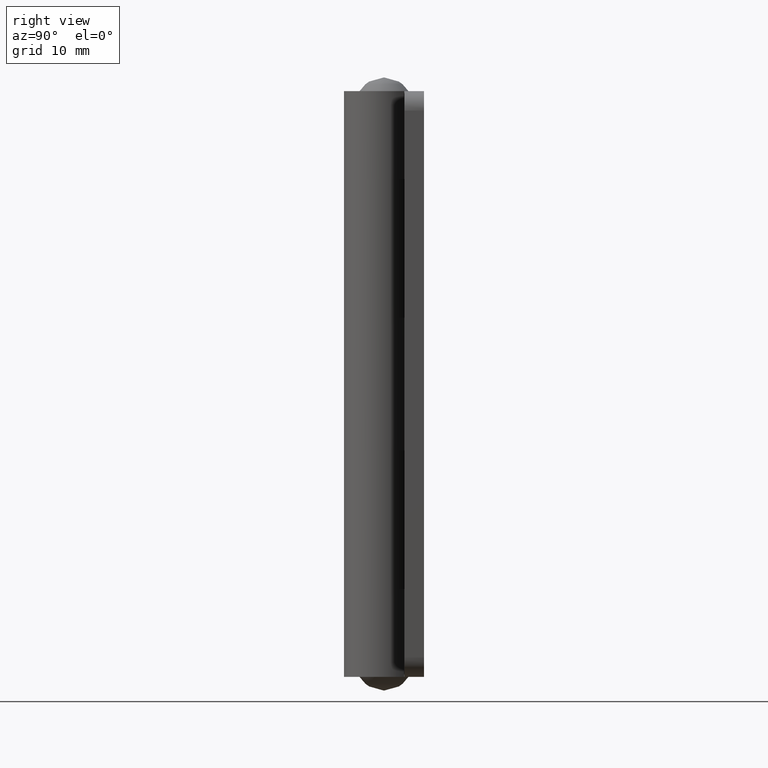
[diagram: clean part render]
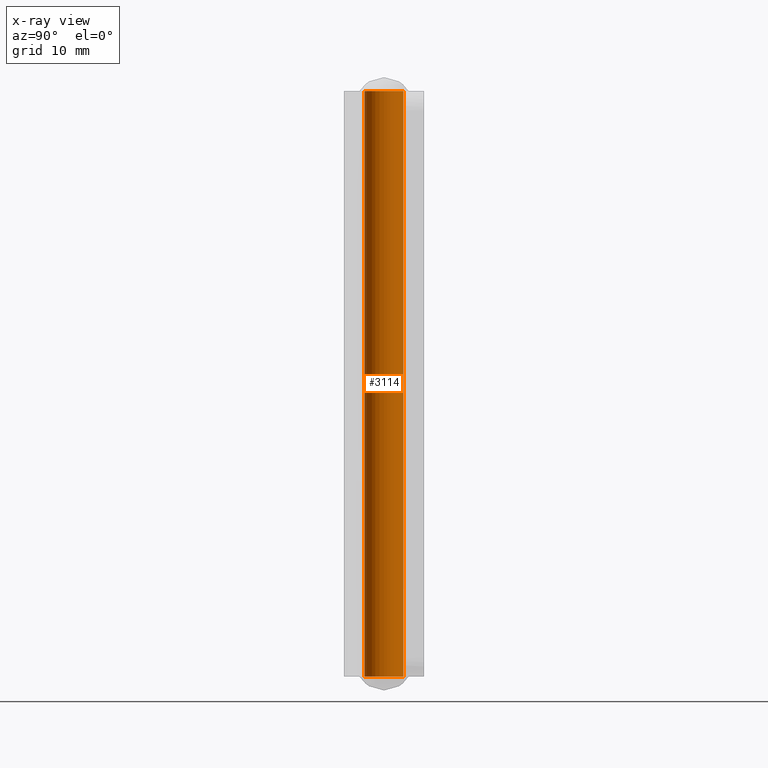
[diagram: x-ray — body ghosted, one internal face saturated and labeled with its STEP entity id]
A machine part, right view, then the same camera in x-ray: the body is ghosted and one INTERNAL B-rep face — a face not visible from any outside direction — is saturated and labeled: STEP entity #3114.
In plain terms, the highlighted face is a freeform B-spline surface patch.
Its self-contained STEP definition (entity closure, byte-faithful):
#3012=CARTESIAN_POINT('',(0.354102703970275,2.979028579091000,-2.250000000000002));
#3013=CARTESIAN_POINT('',(0.268844185913933,2.989162846345817,-2.250000000000002));
#3014=CARTESIAN_POINT('',(0.183145618604571,2.994404395265600,-2.250000000000002));
#3015=CARTESIAN_POINT('',(-2.811258776661029,3.177550013870171,-2.250000000000003));
#3016=CARTESIAN_POINT('',(-2.994404395265600,0.183145618604571,-2.250000000000002));
#3017=CARTESIAN_POINT('',(-3.177550013870171,-2.811258776661029,-2.250000000000003));
#3018=CARTESIAN_POINT('',(-0.183145618604571,-2.994404395265600,-2.250000000000002));
#3019=CARTESIAN_POINT('',(0.354102703970275,2.979028579091000,92.306250000000020));
#3020=CARTESIAN_POINT('',(0.268844185913933,2.989162846345817,92.306250000000006));
#3021=CARTESIAN_POINT('',(0.183145618604571,2.994404395265600,92.306250000000006));
#3022=CARTESIAN_POINT('',(-2.811258776661029,3.177550013870171,92.306249999999991));
#3023=CARTESIAN_POINT('',(-2.994404395265600,0.183145618604571,92.306250000000006));
#3024=CARTESIAN_POINT('',(-3.177550013870171,-2.811258776661029,92.306249999999991));
#3025=CARTESIAN_POINT('',(-0.183145618604571,-2.994404395265600,92.306250000000006));
#3033=(BOUNDED_SURFACE()B_SPLINE_SURFACE(2,1,((#3012,#3019),(#3013,#3020),(#3014,#3021),(#3015,#3022),(#3016,#3023),(#3017,#3024),(#3018,#3025)),.UNSPECIFIED.,.F.,.F.,.U.)B_SPLINE_SURFACE_WITH_KNOTS((3,2,2,3),(2,2),(0.0,0.198822509939086,5.169385258416225,10.139948006893370),(0.0,94.556250000000034),.UNSPECIFIED.)GEOMETRIC_REPRESENTATION_ITEM()RATIONAL_B_SPLINE_SURFACE(((0.977505800795127,0.977505800795127),(0.988284271247462,0.988284271247462),(1.0,1.0),(0.707106781186548,0.707106781186548),(1.0,1.0),(0.707106781186548,0.707106781186548),(1.0,1.0)))REPRESENTATION_ITEM('')SURFACE());
#3034=CARTESIAN_POINT('',(0.354102704248209,2.979028579057963,-3.180160E-015));
#3035=VERTEX_POINT('',#3034);
#3036=CARTESIAN_POINT('',(-3.0,0.0,0.0));
#3037=VERTEX_POINT('',#3036);
#3038=CARTESIAN_POINT('',(0.354102704248209,2.979028579057962,-3.180160E-015));
#3039=CARTESIAN_POINT('',(0.177672359236602,3.000000000000000,0.0));
#3040=CARTESIAN_POINT('',(0.0,3.0,0.0));
#3041=CARTESIAN_POINT('',(-3.0,3.0,0.0));
#3042=CARTESIAN_POINT('',(-3.0,0.0,0.0));
#3050=(BOUNDED_CURVE()B_SPLINE_CURVE(2,(#3038,#3039,#3040,#3041,#3042),.UNSPECIFIED.,.F.,.U.)B_SPLINE_CURVE_WITH_KNOTS((3,2,3),(0.229562473484109,0.250000000000000,0.500000000000000),.UNSPECIFIED.)CURVE()GEOMETRIC_REPRESENTATION_ITEM()RATIONAL_B_SPLINE_CURVE((0.956026754126076,0.976055948296702,1.0,0.707106781186548,1.0))REPRESENTATION_ITEM(''));
#3051=EDGE_CURVE('',#3035,#3037,#3050,.T.);
#3052=ORIENTED_EDGE('',*,*,#3051,.T.);
#3053=CARTESIAN_POINT('',(-0.183145618628614,-2.994404395264130,-3.108624E-015));
#3054=VERTEX_POINT('',#3053);
#3055=CARTESIAN_POINT('',(-3.0,0.0,0.0));
#3056=CARTESIAN_POINT('',(-3.000000000000000,-2.822118200671694,0.0));
#3057=CARTESIAN_POINT('',(-0.183145618628614,-2.994404395264131,-3.108624E-015));
#3065=(BOUNDED_CURVE()B_SPLINE_CURVE(2,(#3055,#3056,#3057),.UNSPECIFIED.,.F.,.U.)B_SPLINE_CURVE_WITH_KNOTS((3,3),(0.500000000000000,0.739332962239198),.UNSPECIFIED.)CURVE()GEOMETRIC_REPRESENTATION_ITEM()RATIONAL_B_SPLINE_CURVE((1.0,0.719603993286411,0.976072041667265))REPRESENTATION_ITEM(''));
#3066=EDGE_CURVE('',#3037,#3054,#3065,.T.);
#3067=ORIENTED_EDGE('',*,*,#3066,.T.);
#3068=CARTESIAN_POINT('',(-0.183145618628613,-2.994404395264130,90.0));
#3069=VERTEX_POINT('',#3068);
#3070=CARTESIAN_POINT('',(-0.183145618628614,-2.994404395264130,-3.108624E-015));
#3071=CARTESIAN_POINT('',(-0.183145618628613,-2.994404395264130,90.0));
#3072=QUASI_UNIFORM_CURVE('',1,(#3070,#3071),.UNSPECIFIED.,.F.,.U.);
#3073=EDGE_CURVE('',#3054,#3069,#3072,.T.);
#3074=ORIENTED_EDGE('',*,*,#3073,.T.);
#3075=CARTESIAN_POINT('',(-3.0,0.0,90.0));
#3076=VERTEX_POINT('',#3075);
#3077=CARTESIAN_POINT('',(-3.0,0.0,90.0));
#3078=CARTESIAN_POINT('',(-3.000000000000000,-2.822118200671694,89.999999999999986));
#3079=CARTESIAN_POINT('',(-0.183145618628613,-2.994404395264131,90.0));
#3087=(BOUNDED_CURVE()B_SPLINE_CURVE(2,(#3077,#3078,#3079),.UNSPECIFIED.,.F.,.U.)B_SPLINE_CURVE_WITH_KNOTS((3,3),(0.500000000000000,0.739332962239198),.UNSPECIFIED.)CURVE()GEOMETRIC_REPRESENTATION_ITEM()RATIONAL_B_SPLINE_CURVE((1.0,0.719603993286411,0.976072041667265))REPRESENTATION_ITEM(''));
#3088=EDGE_CURVE('',#3076,#3069,#3087,.T.);
#3089=ORIENTED_EDGE('',*,*,#3088,.F.);
#3090=CARTESIAN_POINT('',(0.354102704248209,2.979028579057963,90.0));
#3091=VERTEX_POINT('',#3090);
#3092=CARTESIAN_POINT('',(0.354102704248209,2.979028579057962,90.0));
#3093=CARTESIAN_POINT('',(0.177672359236602,3.000000000000000,90.0));
#3094=CARTESIAN_POINT('',(0.0,3.0,90.0));
#3095=CARTESIAN_POINT('',(-3.0,3.0,89.999999999999986));
#3096=CARTESIAN_POINT('',(-3.0,0.0,90.0));
#3104=(BOUNDED_CURVE()B_SPLINE_CURVE(2,(#3092,#3093,#3094,#3095,#3096),.UNSPECIFIED.,.F.,.U.)B_SPLINE_CURVE_WITH_KNOTS((3,2,3),(0.229562473484109,0.250000000000000,0.500000000000000),.UNSPECIFIED.)CURVE()GEOMETRIC_REPRESENTATION_ITEM()RATIONAL_B_SPLINE_CURVE((0.956026754126076,0.976055948296702,1.0,0.707106781186548,1.0))REPRESENTATION_ITEM(''));
#3105=EDGE_CURVE('',#3091,#3076,#3104,.T.);
#3106=ORIENTED_EDGE('',*,*,#3105,.F.);
#3107=CARTESIAN_POINT('',(0.354102704248209,2.979028579057963,-3.180160E-015));
#3108=CARTESIAN_POINT('',(0.354102704248209,2.979028579057963,90.0));
#3109=QUASI_UNIFORM_CURVE('',1,(#3107,#3108),.UNSPECIFIED.,.F.,.U.);
#3110=EDGE_CURVE('',#3035,#3091,#3109,.T.);
#3111=ORIENTED_EDGE('',*,*,#3110,.F.);
#3112=EDGE_LOOP('',(#3052,#3067,#3074,#3089,#3106,#3111));
#3113=FACE_OUTER_BOUND('',#3112,.T.);
#3114=ADVANCED_FACE('',(#3113),#3033,.T.);